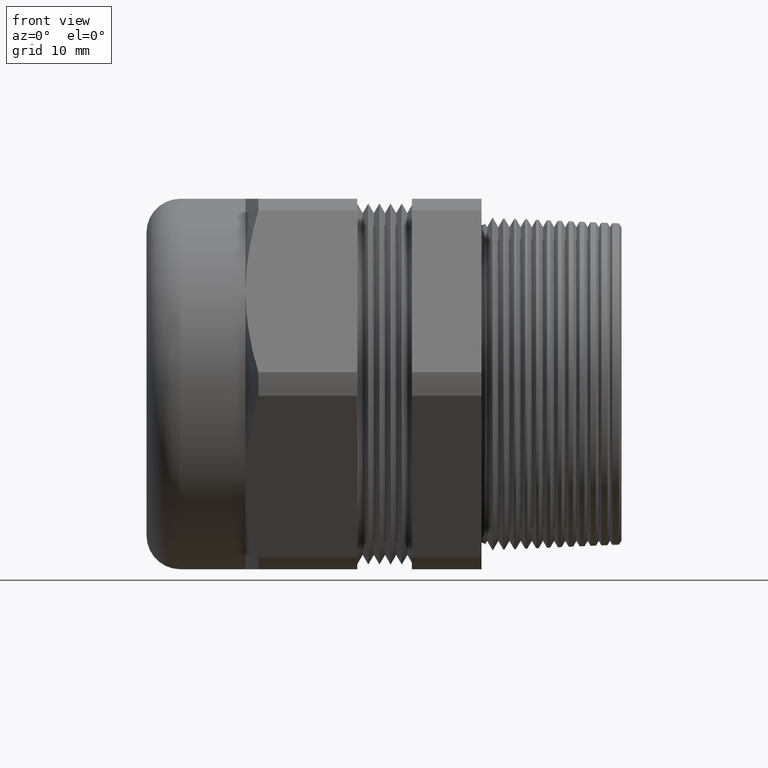
[diagram: clean part render]
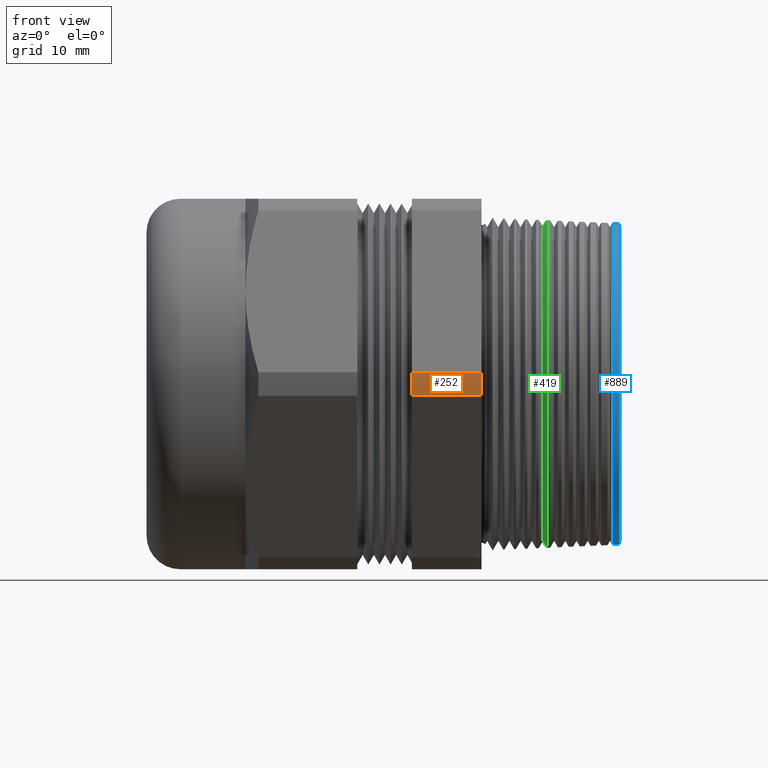
[diagram: same view with three faces highlighted in distinct colors, each labeled with its STEP entity id]
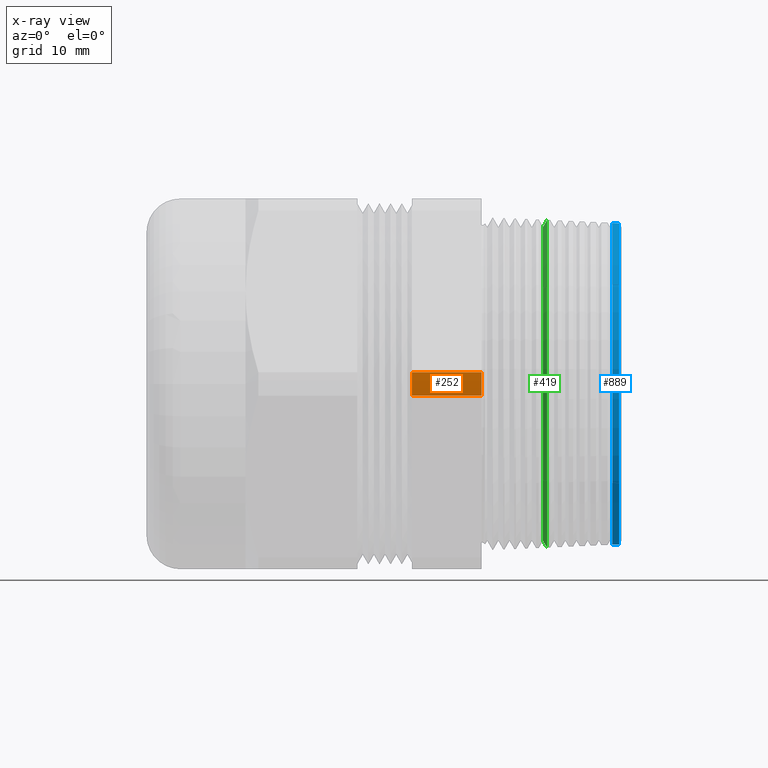
[diagram: x-ray of the same camera — body ghosted, the three highlighted faces saturated]
A machine part, front view with three faces highlighted in distinct colors.
The next image is the same camera in x-ray (body ghosted, the three faces saturated) — at least one of them is partly hidden behind the body in this view.
Their STEP definitions:

[orange] entity #252 — the highlighted cylindrical surface (partial cylindrical patch) has radius 29.7282 mm, axis along (-1, 0, 0).
#252 = ADVANCED_FACE ( 'NONE', ( #1861 ), #1859, .T. ) ;
#253 = EDGE_LOOP ( 'NONE', ( #254, #257, #258, #261 ) ) ;
#254 = ORIENTED_EDGE ( 'NONE', *, *, #255, .T. ) ;
#255 = EDGE_CURVE ( 'NONE', #256, #787, #1860, .T. ) ;
#256 = VERTEX_POINT ( 'NONE', #1851 ) ;
#257 = ORIENTED_EDGE ( 'NONE', *, *, #835, .T. ) ;
#258 = ORIENTED_EDGE ( 'NONE', *, *, #259, .F. ) ;
#259 = EDGE_CURVE ( 'NONE', #260, #831, #1850, .T. ) ;
#260 = VERTEX_POINT ( 'NONE', #1906 ) ;
#261 = ORIENTED_EDGE ( 'NONE', *, *, #262, .F. ) ;
#262 = EDGE_CURVE ( 'NONE', #256, #260, #1905, .T. ) ;
#787 = VERTEX_POINT ( 'NONE', #2749 ) ;
#831 = VERTEX_POINT ( 'NONE', #2855 ) ;
#835 = EDGE_CURVE ( 'NONE', #787, #831, #2854, .T. ) ;
#1850 = LINE ( 'NONE', #1909, #1908 ) ;
#1851 = CARTESIAN_POINT ( 'NONE',  ( -0.3930348258706468100, -1.168535519404734900, -0.06603710994211120500 ) ) ;
#1852 = DIRECTION ( 'NONE',  ( 1.000000000000000000, 0.0000000000000000000, 0.0000000000000000000 ) ) ;
#1853 = VECTOR ( 'NONE', #1852, 39.37007874015748100 ) ;
#1854 = CARTESIAN_POINT ( 'NONE',  ( -4.674745017870971100, -1.168535519404734900, -0.06603710994211120500 ) ) ;
#1855 = DIRECTION ( 'NONE',  ( 0.0000000000000000000, 0.0000000000000000000, 1.000000000000000000 ) ) ;
#1856 = DIRECTION ( 'NONE',  ( -1.000000000000000000, 0.0000000000000000000, 0.0000000000000000000 ) ) ;
#1857 = CARTESIAN_POINT ( 'NONE',  ( -0.7238591030180623300, 0.0000000000000000000, 0.0000000000000000000 ) ) ;
#1858 = AXIS2_PLACEMENT_3D ( 'NONE', #1857, #1856, #1855 ) ;
#1859 = CYLINDRICAL_SURFACE ( 'NONE', #1858, 1.170400000000000100 ) ;
#1860 = LINE ( 'NONE', #1854, #1853 ) ;
#1861 = FACE_OUTER_BOUND ( 'NONE', #253, .T. ) ;
#1901 = DIRECTION ( 'NONE',  ( 0.0000000000000000000, 0.0000000000000000000, 1.000000000000000000 ) ) ;
#1902 = DIRECTION ( 'NONE',  ( -1.000000000000000000, 0.0000000000000000000, 0.0000000000000000000 ) ) ;
#1903 = CARTESIAN_POINT ( 'NONE',  ( -0.3930348258706468100, 0.0000000000000000000, 0.0000000000000000000 ) ) ;
#1904 = AXIS2_PLACEMENT_3D ( 'NONE', #1903, #1902, #1901 ) ;
#1905 = CIRCLE ( 'NONE', #1904, 1.170400000000000100 ) ;
#1906 = CARTESIAN_POINT ( 'NONE',  ( -0.3930348258706468100, -1.168535519404735100, 0.06603710994211092800 ) ) ;
#1907 = DIRECTION ( 'NONE',  ( 1.000000000000000000, 0.0000000000000000000, 0.0000000000000000000 ) ) ;
#1908 = VECTOR ( 'NONE', #1907, 39.37007874015748100 ) ;
#1909 = CARTESIAN_POINT ( 'NONE',  ( -4.674745017870971100, -1.168535519404735100, 0.06603710994211092800 ) ) ;
#2749 = CARTESIAN_POINT ( 'NONE',  ( 0.0000000000000000000, -1.168535519404734900, -0.06603710994211120500 ) ) ;
#2850 = DIRECTION ( 'NONE',  ( 0.0000000000000000000, 0.0000000000000000000, 1.000000000000000000 ) ) ;
#2851 = DIRECTION ( 'NONE',  ( -1.000000000000000000, 0.0000000000000000000, 0.0000000000000000000 ) ) ;
#2852 = CARTESIAN_POINT ( 'NONE',  ( 0.0000000000000000000, 0.0000000000000000000, 0.0000000000000000000 ) ) ;
#2853 = AXIS2_PLACEMENT_3D ( 'NONE', #2852, #2851, #2850 ) ;
#2854 = CIRCLE ( 'NONE', #2853, 1.170400000000000100 ) ;
#2855 = CARTESIAN_POINT ( 'NONE',  ( 0.0000000000000000000, -1.168535519404735100, 0.06603710994211092800 ) ) ;

[blue] entity #889 — the highlighted conical surface has half-angle 2.5 deg.
#520 = VERTEX_POINT ( 'NONE', #2280 ) ;
#609 = VERTEX_POINT ( 'NONE', #2444 ) ;
#620 = VERTEX_POINT ( 'NONE', #2422 ) ;
#747 = VERTEX_POINT ( 'NONE', #2688 ) ;
#802 = EDGE_CURVE ( 'NONE', #520, #747, #2785, .T. ) ;
#805 = EDGE_CURVE ( 'NONE', #609, #620, #2781, .T. ) ;
#889 = ADVANCED_FACE ( 'NONE', ( #2946 ), #2945, .T. ) ;
#891 = EDGE_LOOP ( 'NONE', ( #894, #896, #940, #941 ) ) ;
#894 = ORIENTED_EDGE ( 'NONE', *, *, #802, .F. ) ;
#896 = ORIENTED_EDGE ( 'NONE', *, *, #897, .F. ) ;
#897 = EDGE_CURVE ( 'NONE', #609, #520, #2934, .T. ) ;
#940 = ORIENTED_EDGE ( 'NONE', *, *, #805, .T. ) ;
#941 = ORIENTED_EDGE ( 'NONE', *, *, #942, .F. ) ;
#942 = EDGE_CURVE ( 'NONE', #747, #620, #3034, .T. ) ;
#2280 = CARTESIAN_POINT ( 'NONE',  ( 0.7755497932851391800, 1.110702236813675800E-016, -0.9061387647526690800 ) ) ;
#2422 = CARTESIAN_POINT ( 'NONE',  ( 0.7380591130803150200, 0.0000000000000000000, 0.9077756432006932600 ) ) ;
#2444 = CARTESIAN_POINT ( 'NONE',  ( 0.7755497932851391800, 0.0000000000000000000, 0.9061387647526690800 ) ) ;
#2688 = CARTESIAN_POINT ( 'NONE',  ( 0.7380591130803150200, 1.111704535789658700E-016, -0.9077756432006932600 ) ) ;
#2778 = DIRECTION ( 'NONE',  ( -0.9990482215818576900, 0.0000000000000000000, 0.04361938736533611800 ) ) ;
#2779 = VECTOR ( 'NONE', #2778, 39.37007874015748100 ) ;
#2780 = CARTESIAN_POINT ( 'NONE',  ( 0.7900000000000000400, 0.0000000000000000000, 0.9055078551022752700 ) ) ;
#2781 = LINE ( 'NONE', #2780, #2779 ) ;
#2782 = DIRECTION ( 'NONE',  ( -0.9990482215818576900, 5.341834311772737900E-018, -0.04361938736533611800 ) ) ;
#2783 = VECTOR ( 'NONE', #2782, 39.37007874015748100 ) ;
#2784 = CARTESIAN_POINT ( 'NONE',  ( 0.7900000000000000400, 1.108927296353786800E-016, -0.9055078551022752700 ) ) ;
#2785 = LINE ( 'NONE', #2784, #2783 ) ;
#2930 = DIRECTION ( 'NONE',  ( 0.0000000000000000000, 0.0000000000000000000, 1.000000000000000000 ) ) ;
#2931 = DIRECTION ( 'NONE',  ( 1.000000000000000000, 0.0000000000000000000, 0.0000000000000000000 ) ) ;
#2932 = CARTESIAN_POINT ( 'NONE',  ( 0.7755497932851391800, 0.0000000000000000000, 0.0000000000000000000 ) ) ;
#2933 = AXIS2_PLACEMENT_3D ( 'NONE', #2932, #2931, #2930 ) ;
#2934 = CIRCLE ( 'NONE', #2933, 0.9061387647526690800 ) ;
#2940 = DIRECTION ( 'NONE',  ( 0.0000000000000000000, 0.0000000000000000000, 1.000000000000000000 ) ) ;
#2941 = DIRECTION ( 'NONE',  ( -1.000000000000000000, 0.0000000000000000000, 0.0000000000000000000 ) ) ;
#2942 = CARTESIAN_POINT ( 'NONE',  ( 0.7900000000000000400, 0.0000000000000000000, 0.0000000000000000000 ) ) ;
#2943 = AXIS2_PLACEMENT_3D ( 'NONE', #2942, #2941, #2940 ) ;
#2945 = CONICAL_SURFACE ( 'NONE', #2943, 0.9055078551022752700, 0.04363323129985835500 ) ;
#2946 = FACE_OUTER_BOUND ( 'NONE', #891, .T. ) ;
#3030 = DIRECTION ( 'NONE',  ( 0.0000000000000000000, 0.0000000000000000000, -1.000000000000000000 ) ) ;
#3031 = DIRECTION ( 'NONE',  ( -1.000000000000000000, 0.0000000000000000000, 0.0000000000000000000 ) ) ;
#3032 = CARTESIAN_POINT ( 'NONE',  ( 0.7380591130803150200, 0.0000000000000000000, 0.0000000000000000000 ) ) ;
#3033 = AXIS2_PLACEMENT_3D ( 'NONE', #3032, #3031, #3030 ) ;
#3034 = CIRCLE ( 'NONE', #3033, 0.9077756432006932600 ) ;

[green] entity #419 — the highlighted conical surface has half-angle 60 deg.
#73 = EDGE_CURVE ( 'NONE', #544, #547, #1453, .T. ) ;
#363 = EDGE_CURVE ( 'NONE', #545, #540, #2048, .T. ) ;
#419 = ADVANCED_FACE ( 'NONE', ( #2159 ), #2158, .T. ) ;
#420 = EDGE_LOOP ( 'NONE', ( #421, #422, #423, #424 ) ) ;
#421 = ORIENTED_EDGE ( 'NONE', *, *, #541, .F. ) ;
#422 = ORIENTED_EDGE ( 'NONE', *, *, #363, .F. ) ;
#423 = ORIENTED_EDGE ( 'NONE', *, *, #549, .T. ) ;
#424 = ORIENTED_EDGE ( 'NONE', *, *, #73, .T. ) ;
#540 = VERTEX_POINT ( 'NONE', #2317 ) ;
#541 = EDGE_CURVE ( 'NONE', #540, #547, #2316, .T. ) ;
#544 = VERTEX_POINT ( 'NONE', #2307 ) ;
#545 = VERTEX_POINT ( 'NONE', #2306 ) ;
#547 = VERTEX_POINT ( 'NONE', #2305 ) ;
#549 = EDGE_CURVE ( 'NONE', #545, #544, #2304, .T. ) ;
#1451 = CARTESIAN_POINT ( 'NONE',  ( 0.3693533222417858500, 0.0000000000000000000, 0.0000000000000000000 ) ) ;
#1452 = AXIS2_PLACEMENT_3D ( 'NONE', #1451, #1513, #1512 ) ;
#1453 = CIRCLE ( 'NONE', #1452, 0.9238736856845321000 ) ;
#1512 = DIRECTION ( 'NONE',  ( 0.0000000000000000000, 0.0000000000000000000, -1.000000000000000000 ) ) ;
#1513 = DIRECTION ( 'NONE',  ( -1.000000000000000000, 0.0000000000000000000, 0.0000000000000000000 ) ) ;
#2040 = DIRECTION ( 'NONE',  ( 0.0000000000000000000, 0.0000000000000000000, 1.000000000000000000 ) ) ;
#2041 = DIRECTION ( 'NONE',  ( -1.000000000000000000, 0.0000000000000000000, 0.0000000000000000000 ) ) ;
#2042 = CARTESIAN_POINT ( 'NONE',  ( 0.3468319270764285700, 0.0000000000000000000, 0.0000000000000000000 ) ) ;
#2043 = AXIS2_PLACEMENT_3D ( 'NONE', #2042, #2041, #2040 ) ;
#2048 = CIRCLE ( 'NONE', #2043, 0.8848654850007970900 ) ;
#2153 = DIRECTION ( 'NONE',  ( 0.0000000000000000000, 0.0000000000000000000, -1.000000000000000000 ) ) ;
#2154 = DIRECTION ( 'NONE',  ( 1.000000000000000000, 0.0000000000000000000, 0.0000000000000000000 ) ) ;
#2155 = CARTESIAN_POINT ( 'NONE',  ( 0.3468319270764285700, 0.0000000000000000000, 0.0000000000000000000 ) ) ;
#2156 = AXIS2_PLACEMENT_3D ( 'NONE', #2155, #2154, #2153 ) ;
#2158 = CONICAL_SURFACE ( 'NONE', #2156, 0.8848654850007970900, 1.047197551196597200 ) ;
#2159 = FACE_OUTER_BOUND ( 'NONE', #420, .T. ) ;
#2301 = DIRECTION ( 'NONE',  ( 0.5000000000000004400, 0.0000000000000000000, -0.8660254037844383700 ) ) ;
#2302 = VECTOR ( 'NONE', #2301, 39.37007874015748100 ) ;
#2303 = CARTESIAN_POINT ( 'NONE',  ( 0.3468319270764285700, 0.0000000000000000000, -0.8848654850007970900 ) ) ;
#2304 = LINE ( 'NONE', #2303, #2302 ) ;
#2305 = CARTESIAN_POINT ( 'NONE',  ( 0.3693533222417858500, 0.0000000000000000000, 0.9238736856845321000 ) ) ;
#2306 = CARTESIAN_POINT ( 'NONE',  ( 0.3468319270764285700, 1.108768659756850100E-016, -0.8848654850007970900 ) ) ;
#2307 = CARTESIAN_POINT ( 'NONE',  ( 0.3693533222417858500, 1.131418951990030100E-016, -0.9238736856845321000 ) ) ;
#2313 = DIRECTION ( 'NONE',  ( 0.5000000000000004400, 1.060575238724906400E-016, 0.8660254037844383700 ) ) ;
#2314 = VECTOR ( 'NONE', #2313, 39.37007874015748100 ) ;
#2315 = CARTESIAN_POINT ( 'NONE',  ( 0.3468319270764285700, 1.083647683882196400E-016, 0.8848654850007970900 ) ) ;
#2316 = LINE ( 'NONE', #2315, #2314 ) ;
#2317 = CARTESIAN_POINT ( 'NONE',  ( 0.3468319270764285700, 0.0000000000000000000, 0.8848654850007970900 ) ) ;